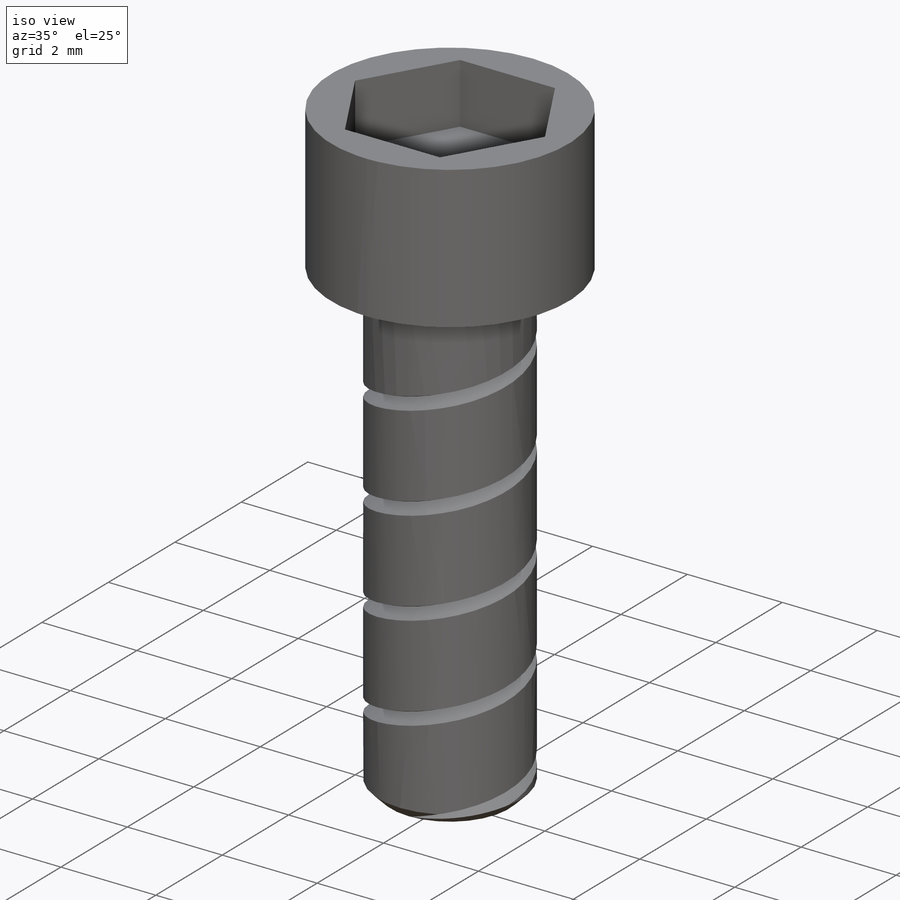
[diagram: iso view]
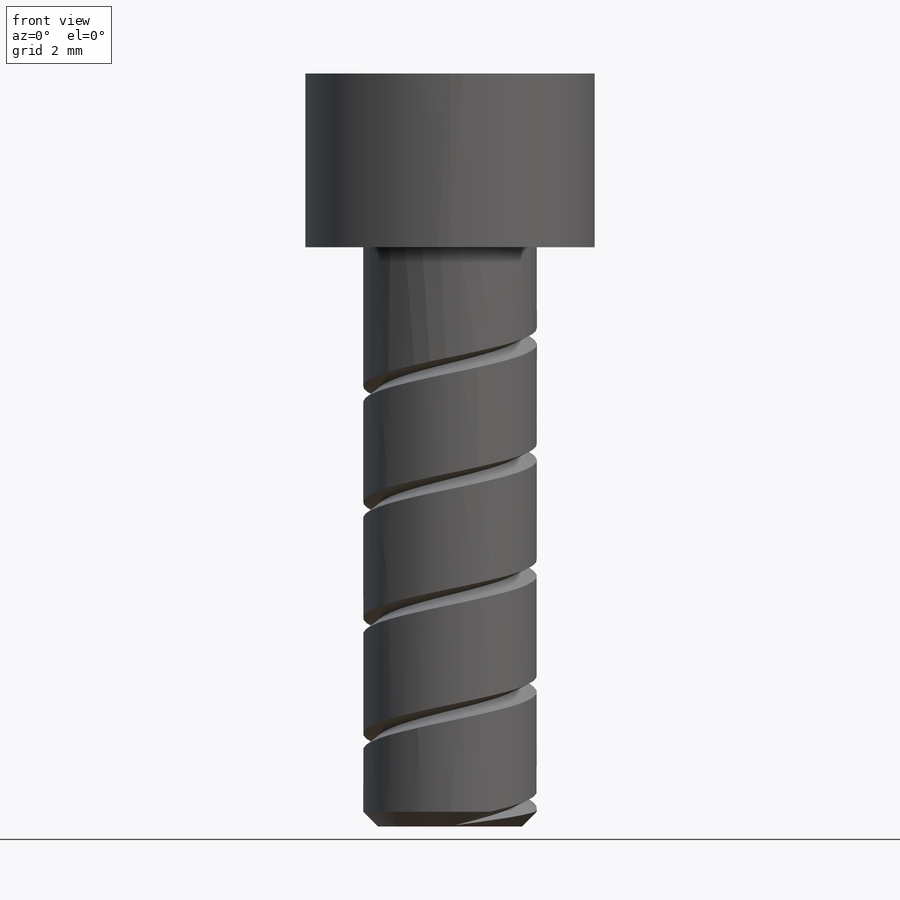
[diagram: front view]
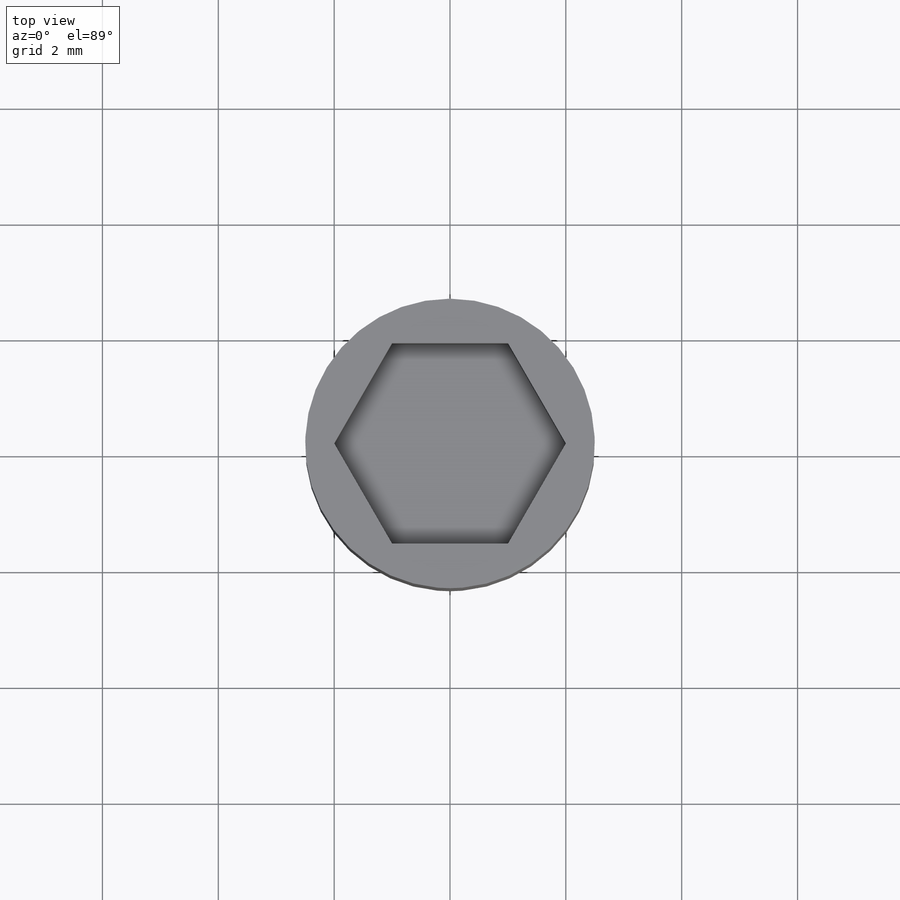
[diagram: top view]
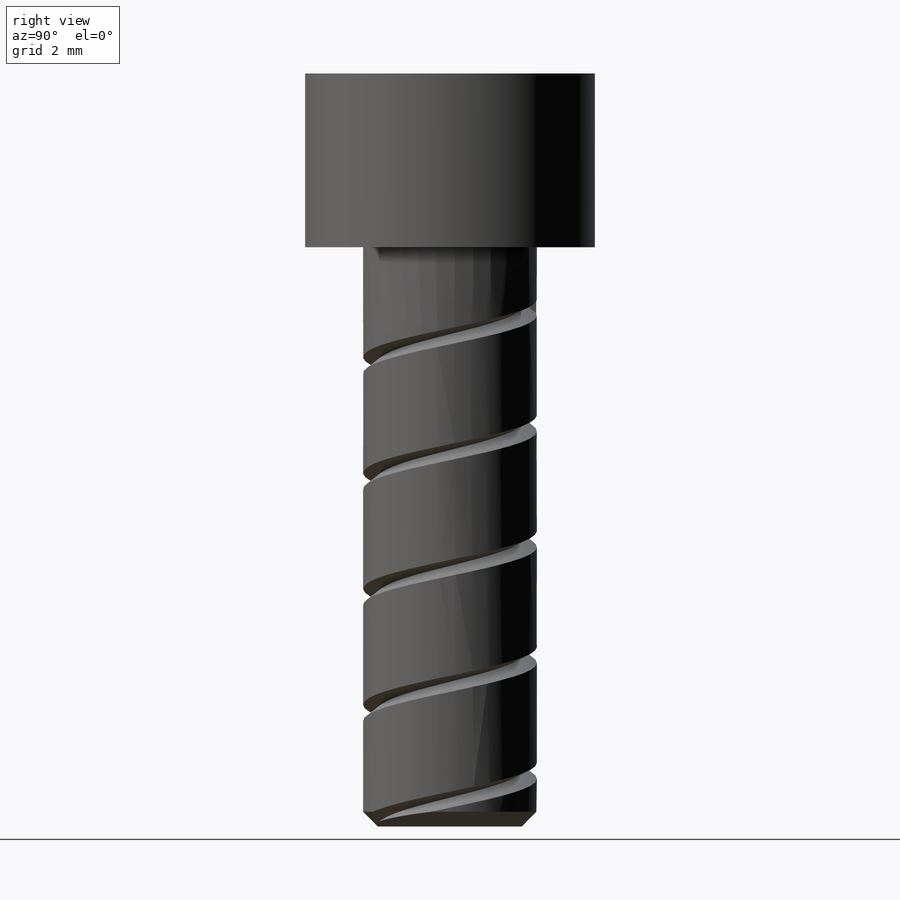
[diagram: right view]
SOLIDWORKS PART (.sldprt)
format: sldprt  version: not decoded by parser v0  size: 230,912 bytes
history: native  units: mm
features: sketch x5, extrude x2, material x1, cut_extrude x1, chamfer x1, helix x1, sweep x1 (+16 scaffold rows collapsed)
feature tree (28):
  scaffold x16  (default folders/planes/origin — collapsed)
  material  "Material <not specified>"
  sketch  "Sketch1"  dims[D1=3.0mm]
  extrude  "Boss-Extrude1"  Depth=10mm
  sketch  "Sketch2"  dims[D1=~2.936021mm]
  extrude  "Boss-Extrude2"  Depth=3mm
  sketch  "Sketch3"
  cut_extrude  "Cut-Extrude2"  Depth=1.27mm
  chamfer  "Chamfer1"  Distance=0.254mm Angle=45deg
  sketch  "Sketch4"
  helix  "Helix/Spiral1"  Pitch=9.04mm
  sketch  "Sketch6"  dims[D1=~78.183144deg]
  sweep  "Cut-Sweep4"
decode coverage: 8 of 11 modeling features carry decoded parameters
note: ~ marks probable driven/reference dimensions
note: suppression state not decoded; provenance and decode notes live in map.json
